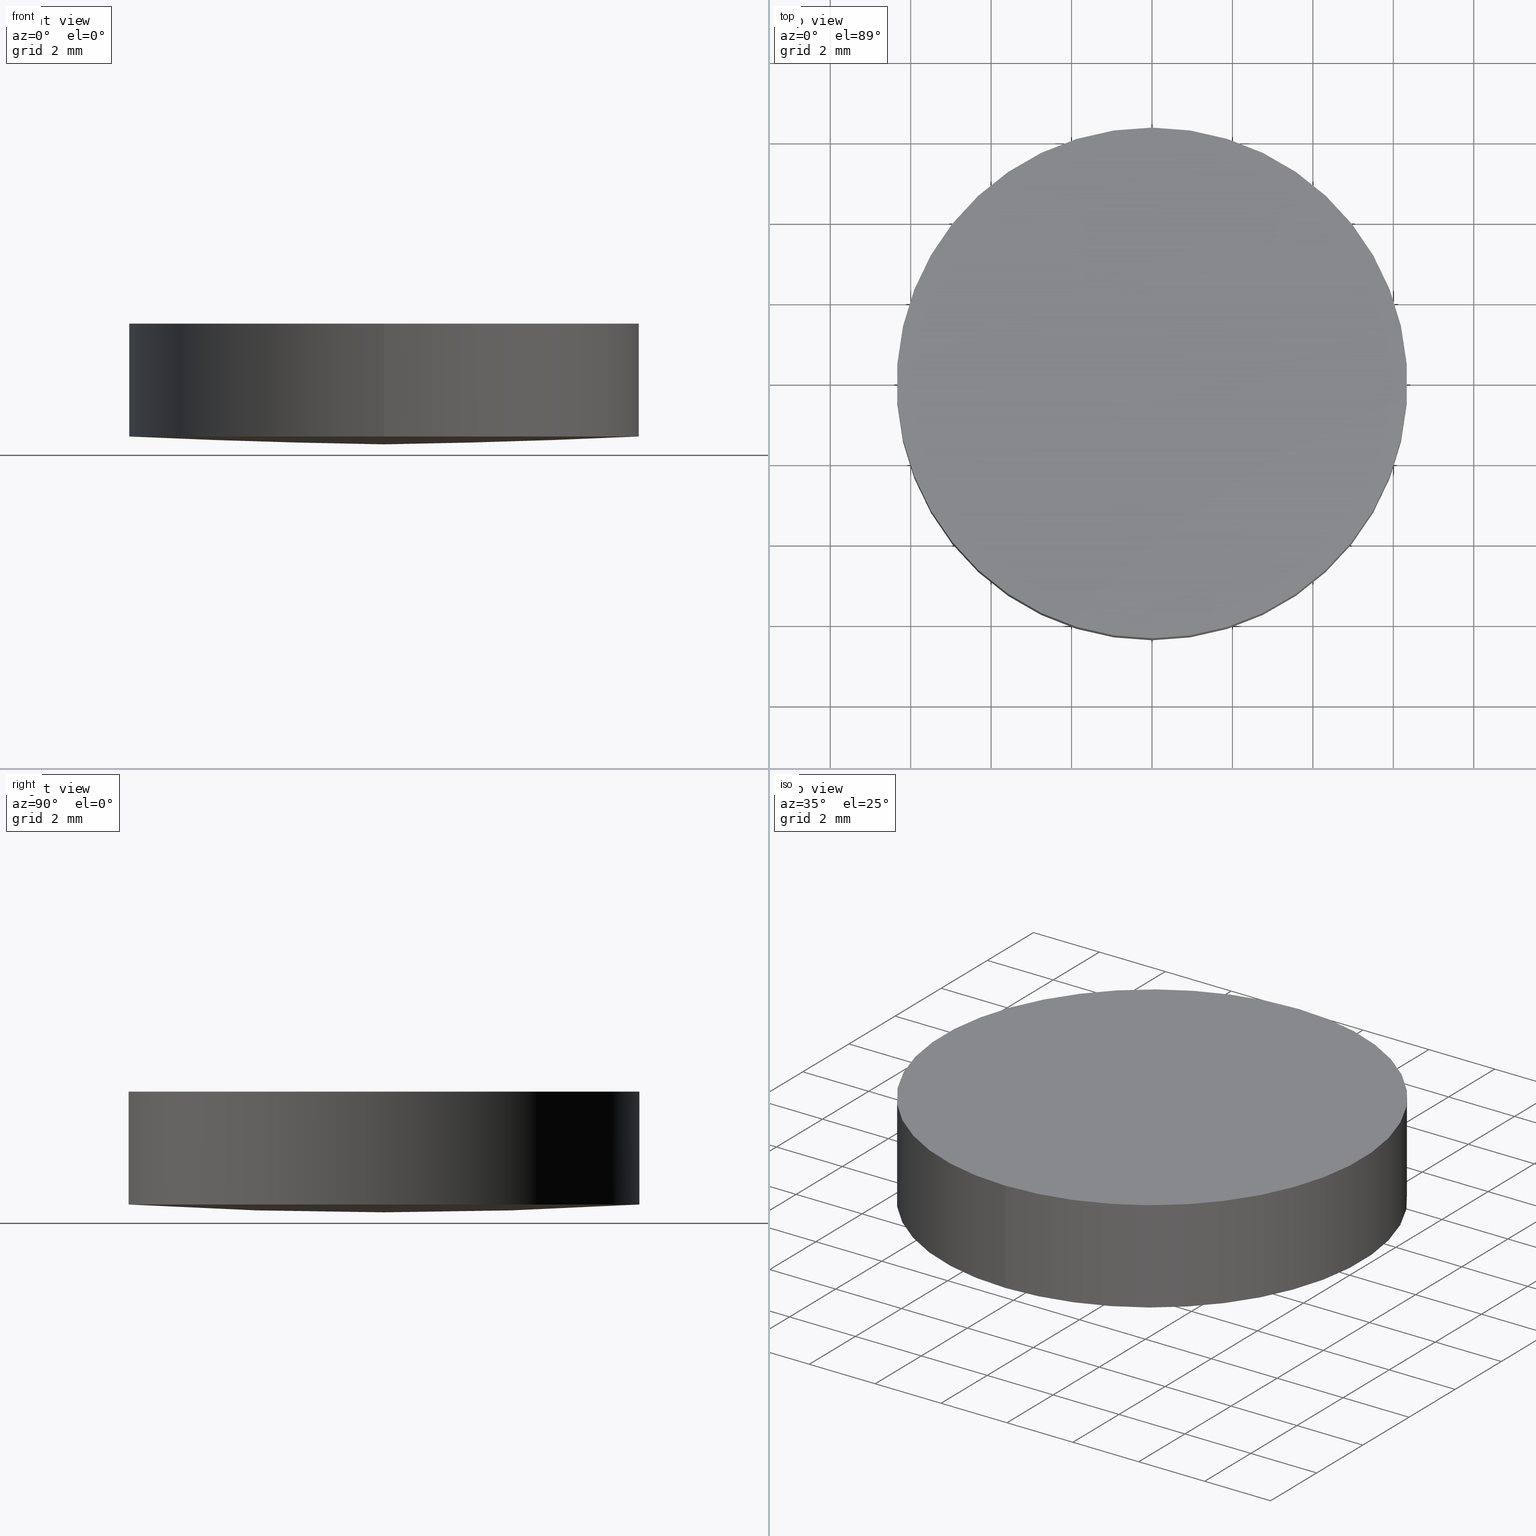
[diagram: canonical four-view strip — front | top / right | iso, engineering-drawing reading convention]
A machine part, canonical four-view strip (front | top / right | iso — engineering-drawing reading convention). The complete STEP part file that produces these views, byte-faithful:
ISO-10303-21;
HEADER;
FILE_DESCRIPTION (( 'STEP AP203' ),
    '1' );
FILE_NAME ('110-0123E BK7 pl-cx 12.7 F200.STEP',
    '2018-12-21T06:29:29',
    ( '' ),
    ( '' ),
    'SwSTEP 2.0',
    'SolidWorks 2017',
    '' );
FILE_SCHEMA (( 'CONFIG_CONTROL_DESIGN' ));
ENDSEC;

DATA;
#1 = DIRECTION ( 'NONE',  ( 1.000000000000000000, 0.0000000000000000000, -0.0000000000000000000 ) ) ;
#2 = EDGE_CURVE ( 'NONE', #148, #101, #147, .T. ) ;
#3 = ORIENTED_EDGE ( 'NONE', *, *, #31, .F. ) ;
#4 = DIRECTION ( 'NONE',  ( -2.283316566636270100E-032, -1.187235674646670000E-016, 1.000000000000000000 ) ) ;
#5 = CARTESIAN_POINT ( 'NONE',  ( 2.498001805406600200E-016, 1.221245327087670000E-015, 0.1946015900619790000 ) ) ;
#6 = PERSON_AND_ORGANIZATION ( #180, #35 ) ;
#7 = EDGE_LOOP ( 'NONE', ( #64, #70, #15, #3 ) ) ;
#8 = CARTESIAN_POINT ( 'NONE',  ( 2.498001805406599800E-016, 8.881784197001237500E-016, 3.000000000000000000 ) ) ;
#9 = ADVANCED_FACE ( 'NONE', ( #14 ), #138, .T. ) ;
#10 = LOCAL_TIME ( 8, 29, 29.00000000000000000, #183 ) ;
#11 = AXIS2_PLACEMENT_3D ( 'NONE', #5, #4, #141 ) ;
#12 = PERSON_AND_ORGANIZATION_ROLE ( 'design_supplier' ) ;
#13 = DATE_AND_TIME ( #25, #10 ) ;
#14 = FACE_OUTER_BOUND ( 'NONE', #49, .T. ) ;
#15 = ORIENTED_EDGE ( 'NONE', *, *, #214, .T. ) ;
#16 = CC_DESIGN_PERSON_AND_ORGANIZATION_ASSIGNMENT ( #26, #12, ( #90 ) ) ;
#17 = CLOSED_SHELL ( 'NONE', ( #109, #201, #156, #46, #9 ) ) ;
#18 = VERTEX_POINT ( 'NONE', #103 ) ;
#19 = CC_DESIGN_DATE_AND_TIME_ASSIGNMENT ( #29, #95, ( #80 ) ) ;
#20 = DIRECTION ( 'NONE',  ( 0.0000000000000000000, -1.000000000000000000, -1.195183497228115300E-016 ) ) ;
#21 = CARTESIAN_POINT ( 'NONE',  ( 2.498001805406600200E-016, -6.349999999999998800, 0.1946015900619782200 ) ) ;
#22 = CARTESIAN_POINT ( 'NONE',  ( 0.0000000000000000000, 13.15799999999999900, 3.000000000000000000 ) ) ;
#23 = DIRECTION ( 'NONE',  ( 0.0000000000000000000, -1.000000000000000000, -1.195183497228115300E-016 ) ) ;
#24 = CARTESIAN_POINT ( 'NONE',  ( 2.043161026041667600E-016, 2.144782301332795300, -0.06651807476402445100 ) ) ;
#25 = CALENDAR_DATE ( 2018, 21, 12 ) ;
#26 = PERSON_AND_ORGANIZATION ( #180, #35 ) ;
#27 = CARTESIAN_POINT ( 'NONE',  ( 0.0000000000000000000, 0.0000000000000000000, 0.0000000000000000000 ) ) ;
#28 = AXIS2_PLACEMENT_3D ( 'NONE', #22, #53, #1 ) ;
#29 = DATE_AND_TIME ( #78, #116 ) ;
#30 = APPROVAL_STATUS ( 'not_yet_approved' ) ;
#31 = EDGE_CURVE ( 'NONE', #101, #128, #193, .T. ) ;
#32 = COORDINATED_UNIVERSAL_TIME_OFFSET ( 2, 0, .AHEAD. ) ;
#33 = CC_DESIGN_APPROVAL ( #161, ( #90 ) ) ;
#34 = DIRECTION ( 'NONE',  ( 1.000000000000000000, 0.0000000000000000000, -2.832073977186420200E-016 ) ) ;
#35 = ORGANIZATION ( 'UNSPECIFIED', 'UNSPECIFIED', '' ) ;
#36 = CARTESIAN_POINT ( 'NONE',  ( 7.105427357601000300E-015, -7.105427357601000300E-015, 103.7000000000000000 ) ) ;
#37 = AXIS2_PLACEMENT_3D ( 'NONE', #168, #137, #20 ) ;
#38 = CARTESIAN_POINT ( 'NONE',  ( 2.498001805406600200E-016, 1.221245327087670000E-015, 0.1946015900619790000 ) ) ;
#39 = DIRECTION ( 'NONE',  ( 2.283316566636270100E-032, 1.187235674646670000E-016, -1.000000000000000000 ) ) ;
#40 = CARTESIAN_POINT ( 'NONE',  ( -4.683753385137379200E-014, -2.144782301332798500, -0.06651807476403397100 ) ) ;
#41 = CARTESIAN_POINT ( 'NONE',  ( 2.043161026041667900E-016, -2.144782301332798500, -0.06651807476402404900 ) ) ;
#42 = DIRECTION ( 'NONE',  ( 0.0000000000000000000, 0.0000000000000000000, 1.000000000000000000 ) ) ;
#43 = APPROVAL_DATE_TIME ( #202, #161 ) ;
#44 = UNCERTAINTY_MEASURE_WITH_UNIT (LENGTH_MEASURE( 1.000000000000000100E-005 ), #155, 'distance_accuracy_value', 'NONE');
#45 = APPROVAL_ROLE ( '' ) ;
#46 = ADVANCED_FACE ( 'NONE', ( #191 ), #140, .T. ) ;
#47 = COORDINATED_UNIVERSAL_TIME_OFFSET ( 2, 0, .AHEAD. ) ;
#48 = APPROVAL_ROLE ( '' ) ;
#49 = EDGE_LOOP ( 'NONE', ( #150, #89 ) ) ;
#50 = EDGE_CURVE ( 'NONE', #128, #18, #197, .T. ) ;
#51 = EDGE_LOOP ( 'NONE', ( #130, #167 ) ) ;
#52 = DIRECTION ( 'NONE',  ( -2.283316566636270100E-032, -1.187235674646670000E-016, 1.000000000000000000 ) ) ;
#53 = DIRECTION ( 'NONE',  ( 0.0000000000000000000, 0.0000000000000000000, 1.000000000000000000 ) ) ;
#54 = MANIFOLD_SOLID_BREP ( 'Imported1', #17 ) ;
#55 = DIRECTION ( 'NONE',  ( 2.283316566636270100E-032, 1.187235674646670000E-016, -1.000000000000000000 ) ) ;
#56 = CARTESIAN_POINT ( 'NONE',  ( -6.414061793205780400, -2.144782301332798500, 0.1319060488546585100 ) ) ;
#57 = DIRECTION ( 'NONE',  ( 0.0000000000000000000, -1.000000000000000000, -1.365923996832131600E-016 ) ) ;
#58 = CARTESIAN_POINT ( 'NONE',  ( -6.397631019017631500, -6.426102892568319900, 0.3972143698020708100 ) ) ;
#59 = LOCAL_TIME ( 8, 29, 29.00000000000000000, #47 ) ;
#60 = APPROVAL_ROLE ( '' ) ;
#61 = ORIENTED_EDGE ( 'NONE', *, *, #62, .T. ) ;
#62 = EDGE_CURVE ( 'NONE', #101, #148, #153, .T. ) ;
#63 = FACE_OUTER_BOUND ( 'NONE', #7, .T. ) ;
#64 = ORIENTED_EDGE ( 'NONE', *, *, #2, .F. ) ;
#65 = PERSON_AND_ORGANIZATION ( #180, #35 ) ;
#66 = CC_DESIGN_APPROVAL ( #97, ( #181 ) ) ;
#67 = APPROVAL_DATE_TIME ( #199, #186 ) ;
#68 = AXIS2_PLACEMENT_3D ( 'NONE', #151, #102, #149 ) ;
#69 = CARTESIAN_POINT ( 'NONE',  ( 2.498001805406599800E-016, -6.349999999999998800, 2.999999999999999100 ) ) ;
#70 = ORIENTED_EDGE ( 'NONE', *, *, #195, .T. ) ;
#71 = CARTESIAN_POINT ( 'NONE',  ( -6.397631019017631500, 6.426102892568316300, 0.3972143698020708100 ) ) ;
#72 = CARTESIAN_POINT ( 'NONE',  ( 4.267467928855160700, -6.426102892568319900, 0.2652915239847752300 ) ) ;
#73 = CARTESIAN_POINT ( 'NONE',  ( -4.278427892267526300, -2.144782301332798500, -0.0003556090140736337500 ) ) ;
#74 = CARTESIAN_POINT ( 'NONE',  ( -4.683753385137379200E-014, -6.426102892568319900, 0.1992985453039315700 ) ) ;
#75 = APPROVAL_PERSON_ORGANIZATION ( #179, #186, #45 ) ;
#76 = DIRECTION ( 'NONE',  ( -2.283316566636270100E-032, -1.187235674646670000E-016, 1.000000000000000000 ) ) ;
#77 = PERSON_AND_ORGANIZATION_ROLE ( 'design_owner' ) ;
#78 = CALENDAR_DATE ( 2018, 21, 12 ) ;
#79 =( BOUNDED_SURFACE ( )  B_SPLINE_SURFACE ( 3, 3, ( 
 ( #165, #136, #72, #88 ),
 ( #41, #143, #139, #187 ),
 ( #24, #188, #126, #85 ),
 ( #204, #189, #123, #106 ) ),
 .UNSPECIFIED., .F., .F., .F. ) 
 B_SPLINE_SURFACE_WITH_KNOTS ( ( 4, 4 ),
 ( 4, 4 ),
 ( 0.0000000000000000000, 1.000000000000000000 ),
 ( 0.0000000000000000000, 1.000000000000000000 ),
 .UNSPECIFIED. ) 
 GEOMETRIC_REPRESENTATION_ITEM ( )  RATIONAL_B_SPLINE_SURFACE ( (
 ( 1.000000000000000000, 0.9996812209134802200, 0.9996812209134802200, 1.000000000000000000),
 ( 0.9987187493069500400, 0.9984003786563557800, 0.9984003786563557800, 0.9987187493069500400),
 ( 0.9987187493069500400, 0.9984003786563557800, 0.9984003786563557800, 0.9987187493069500400),
 ( 1.000000000000000000, 0.9996812209134802200, 0.9996812209134802200, 1.000000000000000000) ) ) 
 REPRESENTATION_ITEM ( '' )  SURFACE ( )  );
#80 = PRODUCT_DEFINITION ( 'UNKNOWN', '', #90, #206 ) ;
#81 = CALENDAR_DATE ( 2018, 21, 12 ) ;
#82 = DIRECTION ( 'NONE',  ( 0.0000000000000000000, -1.000000000000000000, 0.0000000000000000000 ) ) ;
#83 = APPROVAL_PERSON_ORGANIZATION ( #105, #97, #48 ) ;
#84 = EDGE_CURVE ( 'NONE', #101, #148, #182, .T. ) ;
#85 = CARTESIAN_POINT ( 'NONE',  ( 6.414061793205790200, 2.144782301332795300, 0.1319060488546600400 ) ) ;
#86 = DATE_AND_TIME ( #175, #59 ) ;
#87 = COORDINATED_UNIVERSAL_TIME_OFFSET ( 2, 0, .AHEAD. ) ;
#88 = CARTESIAN_POINT ( 'NONE',  ( 6.397631019017640400, -6.426102892568319900, 0.3972143698020727500 ) ) ;
#89 = ORIENTED_EDGE ( 'NONE', *, *, #214, .F. ) ;
#90 = PRODUCT_DEFINITION_FORMATION_WITH_SPECIFIED_SOURCE ( 'ANY', '', #215, .NOT_KNOWN. ) ;
#91 = CARTESIAN_POINT ( 'NONE',  ( -4.278427892267526300, 2.144782301332795300, -0.0003556090140740674400 ) ) ;
#92 = CARTESIAN_POINT ( 'NONE',  ( -2.139725520944014000, 2.144782301332795300, -0.06651807476403326400 ) ) ;
#93 = PRODUCT_DEFINITION_SHAPE ( 'NONE', 'NONE',  #80 ) ;
#94 = DIRECTION ( 'NONE',  ( 1.000000000000000000, 0.0000000000000000000, 0.0000000000000000000 ) ) ;
#95 = DATE_TIME_ROLE ( 'creation_date' ) ;
#96 = APPLICATION_CONTEXT ( 'configuration controlled 3d designs of mechanical parts and assemblies' ) ;
#97 = APPROVAL ( #30, 'UNSPECIFIED' ) ;
#98 = SHAPE_DEFINITION_REPRESENTATION ( #93, #208 ) ;
#99 = ORIENTED_EDGE ( 'NONE', *, *, #195, .F. ) ;
#100 = FACE_OUTER_BOUND ( 'NONE', #51, .T. ) ;
#101 = VERTEX_POINT ( 'NONE', #134 ) ;
#102 = DIRECTION ( 'NONE',  ( -2.283316566636270100E-032, -1.187235674646670000E-016, 1.000000000000000000 ) ) ;
#103 = CARTESIAN_POINT ( 'NONE',  ( 1.027450897999229200E-015, 6.350000000000000500, 3.000000000000000900 ) ) ;
#104 = CARTESIAN_POINT ( 'NONE',  ( -4.267467928855170500, 6.426102892568316300, 0.2652915239847744000 ) ) ;
#105 = PERSON_AND_ORGANIZATION ( #180, #35 ) ;
#106 = CARTESIAN_POINT ( 'NONE',  ( 6.397631019017640400, 6.426102892568316300, 0.3972143698020727500 ) ) ;
#107 = PRODUCT_RELATED_PRODUCT_CATEGORY ( 'detail', '', ( #215 ) ) ;
#108 = FACE_OUTER_BOUND ( 'NONE', #133, .T. ) ;
#109 = ADVANCED_FACE ( 'NONE', ( #100 ), #79, .T. ) ;
#110 = CARTESIAN_POINT ( 'NONE',  ( -6.414061793205780400, 2.144782301332795300, 0.1319060488546580600 ) ) ;
#111 = CARTESIAN_POINT ( 'NONE',  ( -2.139725520944014000, -2.144782301332798500, -0.06651807476403283300 ) ) ;
#112 = VECTOR ( 'NONE', #52, 1000.000000000000000 ) ;
#113 = PERSON_AND_ORGANIZATION_ROLE ( 'creator' ) ;
#114 = APPLICATION_PROTOCOL_DEFINITION ( 'international standard', 'config_control_design', 1994, #115 ) ;
#115 = APPLICATION_CONTEXT ( 'configuration controlled 3d designs of mechanical parts and assemblies' ) ;
#116 = LOCAL_TIME ( 8, 29, 29.00000000000000000, #87 ) ;
#117 = CYLINDRICAL_SURFACE ( 'NONE', #11, 6.349999999999999600 ) ;
#118 = AXIS2_PLACEMENT_3D ( 'NONE', #36, #34, #82 ) ;
#119 = VECTOR ( 'NONE', #76, 1000.000000000000000 ) ;
#120 =( BOUNDED_SURFACE ( )  B_SPLINE_SURFACE ( 3, 3, ( 
 ( #58, #172, #169, #74 ),
 ( #56, #73, #111, #40 ),
 ( #110, #91, #92, #190 ),
 ( #71, #104, #209, #124 ) ),
 .UNSPECIFIED., .F., .F., .F. ) 
 B_SPLINE_SURFACE_WITH_KNOTS ( ( 4, 4 ),
 ( 4, 4 ),
 ( 0.0000000000000000000, 1.000000000000000000 ),
 ( 0.0000000000000000000, 1.000000000000000000 ),
 .UNSPECIFIED. ) 
 GEOMETRIC_REPRESENTATION_ITEM ( )  RATIONAL_B_SPLINE_SURFACE ( (
 ( 1.000000000000000000, 0.9996812209134802200, 0.9996812209134802200, 1.000000000000000000),
 ( 0.9987187493069500400, 0.9984003786563557800, 0.9984003786563557800, 0.9987187493069500400),
 ( 0.9987187493069500400, 0.9984003786563557800, 0.9984003786563557800, 0.9987187493069500400),
 ( 1.000000000000000000, 0.9996812209134802200, 0.9996812209134802200, 1.000000000000000000) ) ) 
 REPRESENTATION_ITEM ( '' )  SURFACE ( )  );
#121 = LOCAL_TIME ( 8, 29, 29.00000000000000000, #162 ) ;
#122 = AXIS2_PLACEMENT_3D ( 'NONE', #8, #55, #57 ) ;
#123 = CARTESIAN_POINT ( 'NONE',  ( 4.267467928855160700, 6.426102892568316300, 0.2652915239847752300 ) ) ;
#124 = CARTESIAN_POINT ( 'NONE',  ( -4.683753385137379200E-014, 6.426102892568316300, 0.1992985453039315700 ) ) ;
#125 = EDGE_LOOP ( 'NONE', ( #99, #196, #160, #142 ) ) ;
#126 = CARTESIAN_POINT ( 'NONE',  ( 4.278427892267517400, 2.144782301332795300, -0.0003556090140732000700 ) ) ;
#127 = APPROVAL_DATE_TIME ( #86, #97 ) ;
#128 = VERTEX_POINT ( 'NONE', #69 ) ;
#129 = LOCAL_TIME ( 8, 29, 29.00000000000000000, #32 ) ;
#130 = ORIENTED_EDGE ( 'NONE', *, *, #2, .T. ) ;
#131 = AXIS2_PLACEMENT_3D ( 'NONE', #38, #184, #23 ) ;
#132 = PERSON_AND_ORGANIZATION ( #180, #35 ) ;
#133 = EDGE_LOOP ( 'NONE', ( #157, #61 ) ) ;
#134 = CARTESIAN_POINT ( 'NONE',  ( 2.498001805406600200E-016, -6.349999999999998800, 0.1946015900619782200 ) ) ;
#135 = CC_DESIGN_DATE_AND_TIME_ASSIGNMENT ( #13, #192, ( #181 ) ) ;
#136 = CARTESIAN_POINT ( 'NONE',  ( 2.134244228746817700, -6.426102892568319900, 0.1992985453039412300 ) ) ;
#137 = DIRECTION ( 'NONE',  ( 2.283316566636270100E-032, 1.187235674646670000E-016, -1.000000000000000000 ) ) ;
#138 = PLANE ( 'NONE',  #28 ) ;
#139 = CARTESIAN_POINT ( 'NONE',  ( 4.278427892267517400, -2.144782301332798500, -0.0003556090140727663900 ) ) ;
#140 = CYLINDRICAL_SURFACE ( 'NONE', #68, 6.349999999999999600 ) ;
#141 = DIRECTION ( 'NONE',  ( 0.0000000000000000000, -1.000000000000000000, -1.195183497228115300E-016 ) ) ;
#142 = ORIENTED_EDGE ( 'NONE', *, *, #50, .T. ) ;
#143 = CARTESIAN_POINT ( 'NONE',  ( 2.139725520943986000, -2.144782301332798500, -0.06651807476402417400 ) ) ;
#144 = PERSON_AND_ORGANIZATION ( #180, #35 ) ;
#145 =( GEOMETRIC_REPRESENTATION_CONTEXT ( 3 ) GLOBAL_UNCERTAINTY_ASSIGNED_CONTEXT ( ( #44 ) ) GLOBAL_UNIT_ASSIGNED_CONTEXT ( ( #155, #173, #170 ) ) REPRESENTATION_CONTEXT ( 'NONE', 'WORKASPACE' ) );
#146 = MECHANICAL_CONTEXT ( 'NONE', #115, 'mechanical' ) ;
#147 = CIRCLE ( 'NONE', #131, 6.349999999999999600 ) ;
#148 = VERTEX_POINT ( 'NONE', #203 ) ;
#149 = DIRECTION ( 'NONE',  ( 0.0000000000000000000, -1.000000000000000000, -1.195183497228115300E-016 ) ) ;
#150 = ORIENTED_EDGE ( 'NONE', *, *, #50, .F. ) ;
#151 = CARTESIAN_POINT ( 'NONE',  ( 2.498001805406600200E-016, 1.221245327087670000E-015, 0.1946015900619790000 ) ) ;
#152 = DIRECTION ( 'NONE',  ( 0.0000000000000000000, -1.000000000000000000, -1.365923996832131600E-016 ) ) ;
#153 = CIRCLE ( 'NONE', #37, 6.349999999999999600 ) ;
#154 = CARTESIAN_POINT ( 'NONE',  ( 1.027450897999229200E-015, 6.350000000000000500, 0.1946015900619797500 ) ) ;
#155 =( LENGTH_UNIT ( ) NAMED_UNIT ( * ) SI_UNIT ( .MILLI., .METRE. ) );
#156 = ADVANCED_FACE ( 'NONE', ( #108 ), #120, .T. ) ;
#157 = ORIENTED_EDGE ( 'NONE', *, *, #84, .F. ) ;
#158 = PERSON_AND_ORGANIZATION_ROLE ( 'creator' ) ;
#159 = APPLICATION_PROTOCOL_DEFINITION ( 'international standard', 'config_control_design', 1994, #96 ) ;
#160 = ORIENTED_EDGE ( 'NONE', *, *, #31, .T. ) ;
#161 = APPROVAL ( #174, 'UNSPECIFIED' ) ;
#162 = COORDINATED_UNIVERSAL_TIME_OFFSET ( 2, 0, .AHEAD. ) ;
#163 = PERSON_AND_ORGANIZATION ( #180, #35 ) ;
#164 = AXIS2_PLACEMENT_3D ( 'NONE', #27, #42, #94 ) ;
#165 = CARTESIAN_POINT ( 'NONE',  ( 2.219945416859767500E-016, -6.426102892568319900, 0.1992985453039414200 ) ) ;
#166 = AXIS2_PLACEMENT_3D ( 'NONE', #200, #39, #152 ) ;
#167 = ORIENTED_EDGE ( 'NONE', *, *, #84, .T. ) ;
#168 = CARTESIAN_POINT ( 'NONE',  ( 2.498001805406600200E-016, 1.221245327087670000E-015, 0.1946015900619790000 ) ) ;
#169 = CARTESIAN_POINT ( 'NONE',  ( -2.134244228746845700, -6.426102892568319900, 0.1992985453039326200 ) ) ;
#170 =( NAMED_UNIT ( * ) SI_UNIT ( $, .STERADIAN. ) SOLID_ANGLE_UNIT ( ) );
#171 = APPROVAL_PERSON_ORGANIZATION ( #132, #161, #60 ) ;
#172 = CARTESIAN_POINT ( 'NONE',  ( -4.267467928855170500, -6.426102892568319900, 0.2652915239847744000 ) ) ;
#173 =( NAMED_UNIT ( * ) PLANE_ANGLE_UNIT ( ) SI_UNIT ( $, .RADIAN. ) );
#174 = APPROVAL_STATUS ( 'not_yet_approved' ) ;
#175 = CALENDAR_DATE ( 2018, 21, 12 ) ;
#176 = CC_DESIGN_PERSON_AND_ORGANIZATION_ASSIGNMENT ( #65, #113, ( #90 ) ) ;
#177 = SECURITY_CLASSIFICATION_LEVEL ( 'unclassified' ) ;
#178 = CC_DESIGN_PERSON_AND_ORGANIZATION_ASSIGNMENT ( #6, #77, ( #215 ) ) ;
#179 = PERSON_AND_ORGANIZATION ( #180, #35 ) ;
#180 = PERSON ( 'UNSPECIFIED', 'UNSPECIFIED', 'UNSPECIFIED', ('UNSPECIFIED'), ('UNSPECIFIED'), ('UNSPECIFIED') ) ;
#181 = SECURITY_CLASSIFICATION ( '', '', #177 ) ;
#182 = CIRCLE ( 'NONE', #118, 103.6999999999999900 ) ;
#183 = COORDINATED_UNIVERSAL_TIME_OFFSET ( 2, 0, .AHEAD. ) ;
#184 = DIRECTION ( 'NONE',  ( 2.283316566636270100E-032, 1.187235674646670000E-016, -1.000000000000000000 ) ) ;
#185 = CIRCLE ( 'NONE', #122, 6.349999999999999600 ) ;
#186 = APPROVAL ( #211, 'UNSPECIFIED' ) ;
#187 = CARTESIAN_POINT ( 'NONE',  ( 6.414061793205790200, -2.144782301332798500, 0.1319060488546605100 ) ) ;
#188 = CARTESIAN_POINT ( 'NONE',  ( 2.139725520943986000, 2.144782301332795300, -0.06651807476402460400 ) ) ;
#189 = CARTESIAN_POINT ( 'NONE',  ( 2.134244228746817700, 6.426102892568316300, 0.1992985453039412300 ) ) ;
#190 = CARTESIAN_POINT ( 'NONE',  ( -4.683753385137379200E-014, 2.144782301332795300, -0.06651807476403440200 ) ) ;
#191 = FACE_OUTER_BOUND ( 'NONE', #125, .T. ) ;
#192 = DATE_TIME_ROLE ( 'classification_date' ) ;
#193 = LINE ( 'NONE', #21, #112 ) ;
#194 = CC_DESIGN_SECURITY_CLASSIFICATION ( #181, ( #90 ) ) ;
#195 = EDGE_CURVE ( 'NONE', #148, #18, #207, .T. ) ;
#196 = ORIENTED_EDGE ( 'NONE', *, *, #62, .F. ) ;
#197 = CIRCLE ( 'NONE', #166, 6.349999999999999600 ) ;
#198 = CC_DESIGN_APPROVAL ( #186, ( #80 ) ) ;
#199 = DATE_AND_TIME ( #212, #121 ) ;
#200 = CARTESIAN_POINT ( 'NONE',  ( 2.498001805406599800E-016, 8.881784197001237500E-016, 3.000000000000000000 ) ) ;
#201 = ADVANCED_FACE ( 'NONE', ( #63 ), #117, .T. ) ;
#202 = DATE_AND_TIME ( #81, #129 ) ;
#203 = CARTESIAN_POINT ( 'NONE',  ( 1.027450897999229200E-015, 6.350000000000000500, 0.1946015900619797500 ) ) ;
#204 = CARTESIAN_POINT ( 'NONE',  ( 2.219945416859767500E-016, 6.426102892568316300, 0.1992985453039414200 ) ) ;
#205 = CC_DESIGN_PERSON_AND_ORGANIZATION_ASSIGNMENT ( #144, #210, ( #181 ) ) ;
#206 = DESIGN_CONTEXT ( 'detailed design', #96, 'design' ) ;
#207 = LINE ( 'NONE', #154, #119 ) ;
#208 = ADVANCED_BREP_SHAPE_REPRESENTATION ( '110-0123E BK7 pl-cx 12.7 F200', ( #54, #164 ), #145 ) ;
#209 = CARTESIAN_POINT ( 'NONE',  ( -2.134244228746845700, 6.426102892568316300, 0.1992985453039326200 ) ) ;
#210 = PERSON_AND_ORGANIZATION_ROLE ( 'classification_officer' ) ;
#211 = APPROVAL_STATUS ( 'not_yet_approved' ) ;
#212 = CALENDAR_DATE ( 2018, 21, 12 ) ;
#213 = CC_DESIGN_PERSON_AND_ORGANIZATION_ASSIGNMENT ( #163, #158, ( #80 ) ) ;
#214 = EDGE_CURVE ( 'NONE', #18, #128, #185, .T. ) ;
#215 = PRODUCT ( '110-0123E BK7 pl-cx 12.7 F200', '110-0123E BK7 pl-cx 12.7 F200', '', ( #146 ) ) ;
ENDSEC;
END-ISO-10303-21;
